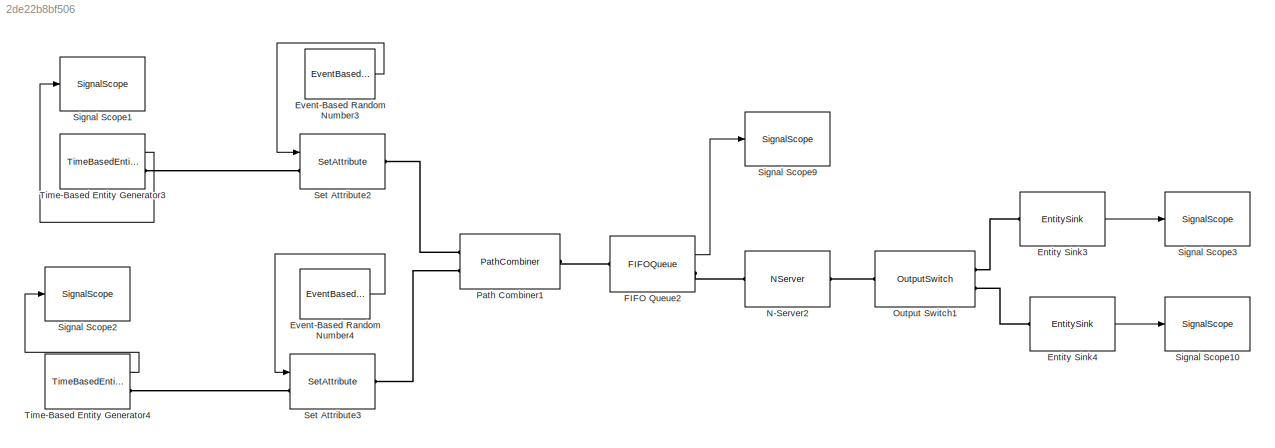
MODEL slx_2de22b8bf506
KIND model
BLOCK [EntitySink] Entity Sink3
  OutputPortMap = o0
  Ports = [0, 1, 0, 0, 0, 1]
  StatNumberArrived = on
BLOCK [EntitySink] Entity Sink4
  OutputPortMap = o0
  Ports = [0, 1, 0, 0, 0, 1]
  StatNumberArrived = on
BLOCK [EventBasedRandomNumber] Event-Based Random Number3
  Distribution = Uniform
  OutputPortMap = o0
  Ports = [0, 1]
  Seed = 1234567
  maxUnif = 39
  minUnif = 21
BLOCK [EventBasedRandomNumber] Event-Based Random Number4
  Distribution = Uniform
  OutputPortMap = o0
  Ports = [0, 1]
  Seed = 12345678
  maxUnif = 15
  minUnif = 9
BLOCK [FIFOQueue] FIFO Queue2
  OutputPortMap = o3
  Ports = [0, 1, 0, 0, 0, 1, 1]
  StatAverageQueueLength = on
BLOCK [NServer] N-Server2
  NumberOfServers = 2
  Ports = [0, 0, 0, 0, 0, 1, 1]
  ServiceTimeFrom = Attribute
BLOCK [OutputSwitch] Output Switch1
  AttributeName = Muncitor
  NumberOutputPorts = 2
  Ports = [0, 0, 0, 0, 0, 1, 2]
  SwitchingCriterion = From attribute
BLOCK [PathCombiner] Path Combiner1
  NumberInputPorts = 2
  Ports = [0, 0, 0, 0, 0, 2, 1]
BLOCK [SetAttribute] Set Attribute2
  AttributeFrom = Signal port|Dialog
  AttributeName = ServiceTime|Muncitor
  AttributeTreatAsVector = 1|1
  AttributeValue = 1|1
  EvaluatedAttributeValue = { [];1}
  InputPortMap = u0
  Ports = [1, 0, 0, 0, 0, 1, 1]
BLOCK [SetAttribute] Set Attribute3
  AttributeFrom = Signal port|Dialog
  AttributeName = ServiceTime|Muncitor
  AttributeTreatAsVector = 1|1
  AttributeValue = 1|2
  EvaluatedAttributeValue = { [];2}
  InputPortMap = u0
  Ports = [1, 0, 0, 0, 0, 1, 1]
BLOCK [SignalScope] Signal Scope1
  CopyFcn = des.scope.CallbackSupport('seCopyFcn',gcbh)
  DeleteFcn = des.scope.CallbackSupport('seDeleteFcn',gcbh)
  InputPortMap = u0
  LoadFcn = des.scope.CallbackSupport('seLoadFcn',gcbh)
  NameChangeFcn = des.scope.CallbackSupport('seNameChangeFcn',gcbh)
  OpenFcn = des.scope.CallbackSupport('seOpenFcn',gcbh)
  Ports = [1]
  PreSaveFcn = des.scope.CallbackSupport('sePreSaveFcn',gcbh)
  StartFcn = des.scope.CallbackSupport('seStartFcn',gcbh)
  StopFcn = des.scope.CallbackSupport('seStopFcn',gcbh)
BLOCK [SignalScope] Signal Scope10
  CopyFcn = des.scope.CallbackSupport('seCopyFcn',gcbh)
  DeleteFcn = des.scope.CallbackSupport('seDeleteFcn',gcbh)
  InputPortMap = u0
  LoadFcn = des.scope.CallbackSupport('seLoadFcn',gcbh)
  NameChangeFcn = des.scope.CallbackSupport('seNameChangeFcn',gcbh)
  OpenFcn = des.scope.CallbackSupport('seOpenFcn',gcbh)
  Ports = [1]
  PreSaveFcn = des.scope.CallbackSupport('sePreSaveFcn',gcbh)
  StartFcn = des.scope.CallbackSupport('seStartFcn',gcbh)
  StopFcn = des.scope.CallbackSupport('seStopFcn',gcbh)
BLOCK [SignalScope] Signal Scope2
  CopyFcn = des.scope.CallbackSupport('seCopyFcn',gcbh)
  DeleteFcn = des.scope.CallbackSupport('seDeleteFcn',gcbh)
  InputPortMap = u0
  LoadFcn = des.scope.CallbackSupport('seLoadFcn',gcbh)
  NameChangeFcn = des.scope.CallbackSupport('seNameChangeFcn',gcbh)
  OpenFcn = des.scope.CallbackSupport('seOpenFcn',gcbh)
  Ports = [1]
  PreSaveFcn = des.scope.CallbackSupport('sePreSaveFcn',gcbh)
  StartFcn = des.scope.CallbackSupport('seStartFcn',gcbh)
  StopFcn = des.scope.CallbackSupport('seStopFcn',gcbh)
BLOCK [SignalScope] Signal Scope3
  CopyFcn = des.scope.CallbackSupport('seCopyFcn',gcbh)
  DeleteFcn = des.scope.CallbackSupport('seDeleteFcn',gcbh)
  InputPortMap = u0
  LoadFcn = des.scope.CallbackSupport('seLoadFcn',gcbh)
  NameChangeFcn = des.scope.CallbackSupport('seNameChangeFcn',gcbh)
  OpenFcn = des.scope.CallbackSupport('seOpenFcn',gcbh)
  Ports = [1]
  PreSaveFcn = des.scope.CallbackSupport('sePreSaveFcn',gcbh)
  StartFcn = des.scope.CallbackSupport('seStartFcn',gcbh)
  StopFcn = des.scope.CallbackSupport('seStopFcn',gcbh)
BLOCK [SignalScope] Signal Scope9
  CopyFcn = des.scope.CallbackSupport('seCopyFcn',gcbh)
  DeleteFcn = des.scope.CallbackSupport('seDeleteFcn',gcbh)
  InputPortMap = u0
  LoadFcn = des.scope.CallbackSupport('seLoadFcn',gcbh)
  NameChangeFcn = des.scope.CallbackSupport('seNameChangeFcn',gcbh)
  OpenFcn = des.scope.CallbackSupport('seOpenFcn',gcbh)
  Ports = [1]
  PreSaveFcn = des.scope.CallbackSupport('sePreSaveFcn',gcbh)
  StartFcn = des.scope.CallbackSupport('seStartFcn',gcbh)
  StopFcn = des.scope.CallbackSupport('seStopFcn',gcbh)
BLOCK [TimeBasedEntityGenerator] Time-Based Entity Generator3
  Distribution = Uniform
  Maximum = 45
  Mean = 0.2
  Minimum = 39
  OutputPortMap = o0
  Ports = [0, 1, 0, 0, 0, 0, 1]
  StatNumberDeparted = on
BLOCK [TimeBasedEntityGenerator] Time-Based Entity Generator4
  Distribution = Uniform
  InitialSeed = 123456
  Maximum = 60
  Mean = 0.2
  Minimum = 40
  OutputPortMap = o0
  Ports = [0, 1, 0, 0, 0, 0, 1]
  StatNumberDeparted = on
LINE Entity Sink3:1 -> Signal Scope3:1
LINE Entity Sink4:1 -> Signal Scope10:1
LINE Event-Based Random Number3:1 -> Set Attribute2:1
LINE Event-Based Random Number4:1 -> Set Attribute3:1
LINE FIFO Queue2:1 -> Signal Scope9:1
LINE Time-Based Entity Generator3:1 -> Signal Scope1:1
LINE Time-Based Entity Generator4:1 -> Signal Scope2:1
PLINE Entity Sink3:LConn1 -- Output Switch1:RConn1
PLINE Entity Sink4:LConn1 -- Output Switch1:RConn2
PLINE FIFO Queue2:LConn1 -- Path Combiner1:RConn1
PLINE FIFO Queue2:RConn1 -- N-Server2:LConn1
PLINE N-Server2:RConn1 -- Output Switch1:LConn1
PLINE Path Combiner1:LConn1 -- Set Attribute2:RConn1
PLINE Path Combiner1:LConn2 -- Set Attribute3:RConn1
PLINE Set Attribute2:LConn1 -- Time-Based Entity Generator3:RConn1
PLINE Set Attribute3:LConn1 -- Time-Based Entity Generator4:RConn1
